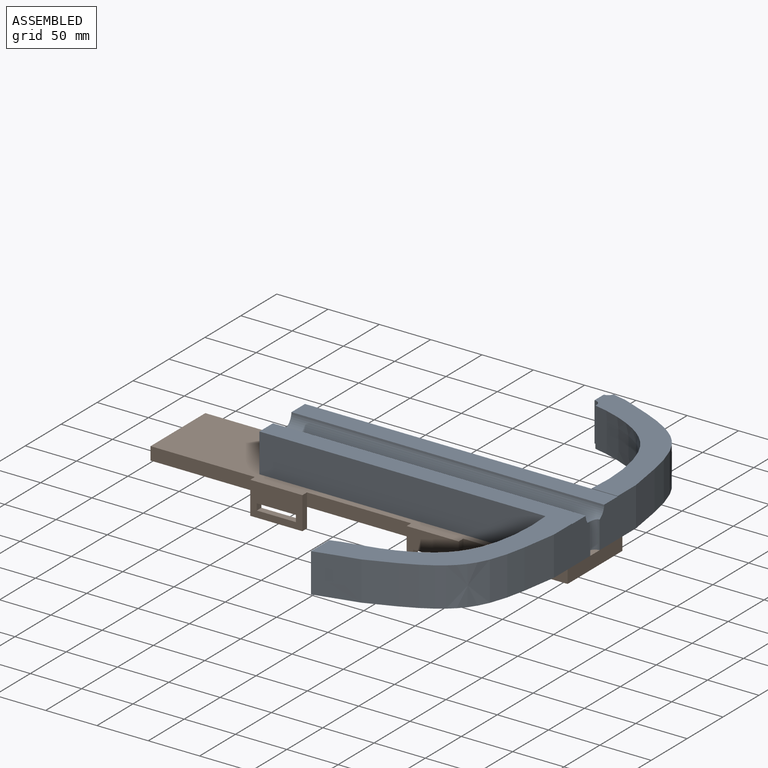
[diagram: assembled view]
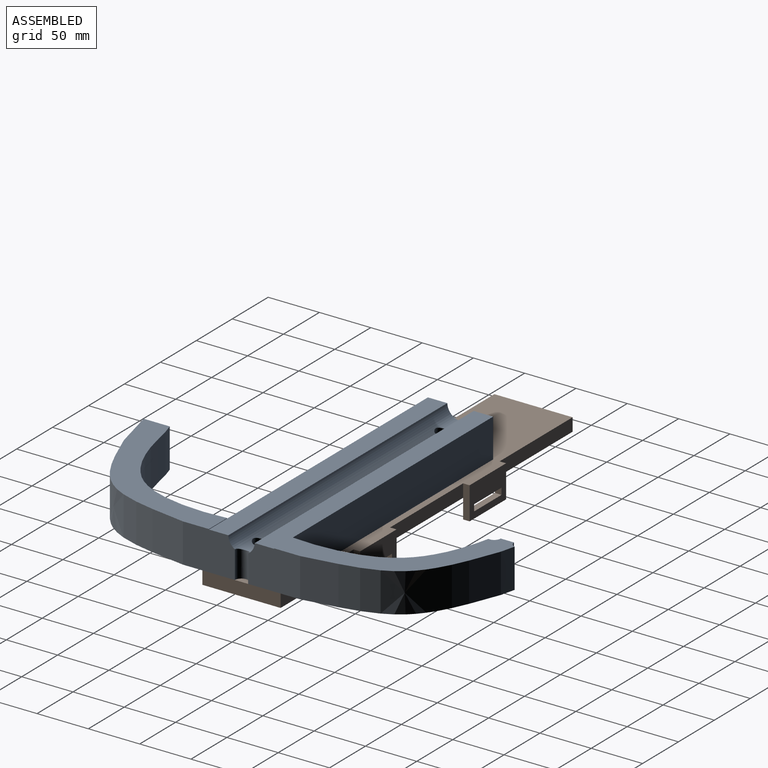
[diagram: assembled view, second angle]
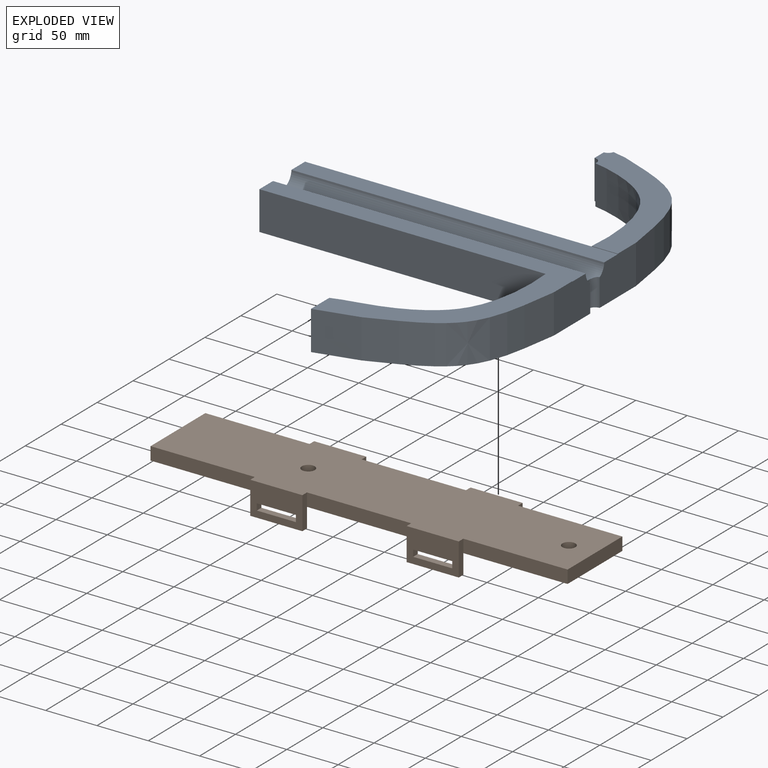
[diagram: exploded view]
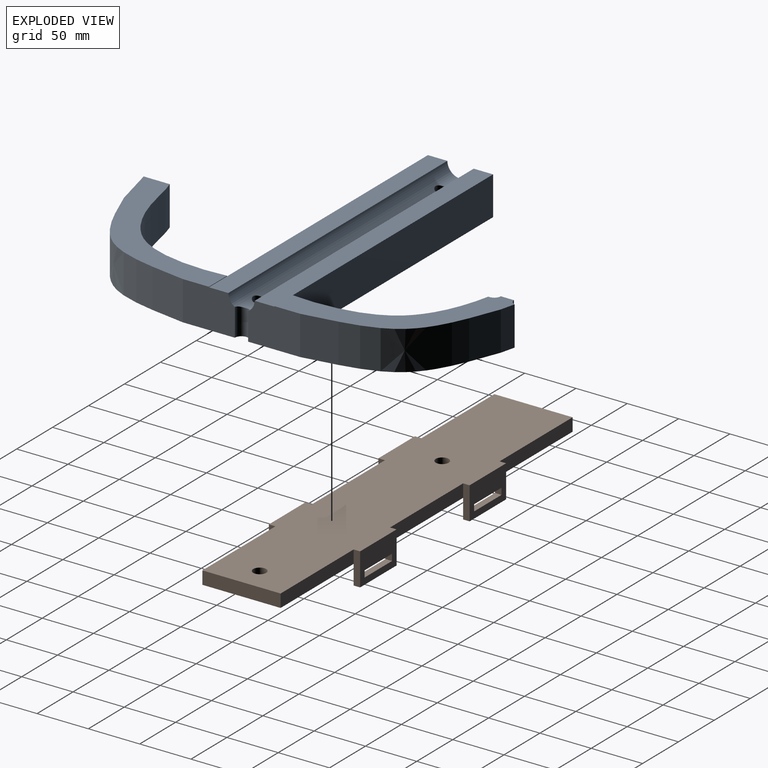
[diagram: exploded view, second angle]
ASSEMBLY  parts=2 mates=3
PART A: 26 faces, bbox 304.8x381.2x38.1 mm
  f0: cylinder r=12.86mm len=304.8mm, axis (-1,0,0), area 11721.3mm2, adj f2,f3,f6,f7,f8,f9,f10,f11
  f1: plane 381.16x304.8mm, normal (0,0,-1), area 29235.4mm2, adj f2,f4,f5,f7,f8,f9,f10,f11
  f2: plane 50.65x38.1mm, normal (1,0,0), area 1871.6mm2, adj f0,f1,f6,f9,f18,f24,f25
  f3: plane 304.8x18.9mm, normal (0,0,1), area 5759.4mm2, adj f0,f4,f7,f8,f12
  f4: plane 279.4x37.67mm, normal (0,-1,0), area 10524.2mm2, adj f1,f3,f8,f13
  f5: plane 279.4x37.67mm, normal (0,1,0), area 10524.2mm2, adj f1,f6,f8,f19
  f6: plane 304.8x18.9mm, normal (0,0,1), area 5759.4mm2, adj f0,f2,f5,f8,f18
  f7: plane 50.65x38.1mm, normal (1,0,0), area 1871.6mm2, adj f0,f1,f3,f9,f12,f14,f17
  f8: plane 63.5x37.67mm, normal (-1,0,0), area 2143.2mm2, adj f0,f1,f3,f4,f5,f6
  f9: cylinder r=6.5mm len=27mm, axis (0,0,-1), area 533.1mm2, adj f0,f1,f2,f7
  f10: cylinder r=6.35mm len=26.92mm, axis (0,0,-1), area 1039.8mm2, adj f0,f1
  f11: cylinder r=6.35mm len=26.92mm, axis (0,0,-1), area 1039.8mm2, adj f0,f1
  f12: plane 25.4x0.43mm, normal (0,1,0), area 11mm2, adj f3,f7,f13,f17
  f13: extruded ~136.83x116.59mm, area 7849.3mm2, adj f1,f4,f12,f16,f17
  f14: extruded ~126.54x98.69mm, area 6682.9mm2, adj f1,f7,f15,f17
  f15: extruded ~42.2x38.1mm, area 1654.8mm2, adj f1,f14,f16,f17
  f16: plane 38.1x25.4mm, normal (-1,0,0), area 967.7mm2, adj f1,f13,f15,f17
  f17: plane 162.23x140.88mm, normal (0,0,1), area 5414.8mm2, adj f7,f12,f13,f14,f15,f16
  f18: plane 25.4x0.43mm, normal (0,-1,0), area 11mm2, adj f2,f6,f19,f25
  f19: extruded ~129.88x88.48mm, area 6746mm2, adj f1,f5,f18,f20,f25
  f20: cylinder r=6.35mm len=38.1mm, axis (0,0,-1), area 434.2mm2, adj f1,f19,f21,f25
  f21: plane 38.1x12.89mm, normal (-1,0,0), area 491mm2, adj f1,f20,f22,f25
  f22: cylinder r=6.31mm len=38.1mm, axis (0,0,-1), area 321.7mm2, adj f1,f21,f23,f25
  f23: extruded ~38.1x14.2mm, area 557.1mm2, adj f1,f22,f24,f25
  f24: extruded ~126.54x98.69mm, area 6682.9mm2, adj f1,f2,f23,f25
  f25: plane 155.44x118.98mm, normal (0,0,1), area 4786.9mm2, adj f2,f18,f19,f20,f21,f22,f23,f24
PART B: 48 faces, bbox 406.4x88.9x31.8 mm
  f0: plane 50.8x19.05mm, normal (0,1,0), area 725.8mm2, adj f12,f13,f14,f15,f41,f42,f43,f44
  f1: plane 50.8x31.75mm, normal (0,-1,0), area 1371mm2, adj f13,f14,f15,f41,f42,f43,f44,f45
  f2: plane 50.8x31.75mm, normal (0,1,0), area 1371mm2, adj f21,f22,f23,f33,f34,f35,f36,f45
  f3: plane 50.8x19.05mm, normal (0,-1,0), area 725.8mm2, adj f12,f21,f22,f23,f33,f34,f35,f36
  f4: plane 101.6x12.7mm, normal (0,1,0), area 1290.3mm2, adj f8,f12,f24,f45
  f5: plane 101.6x12.7mm, normal (0,1,0), area 1290.3mm2, adj f12,f21,f25,f45
  f6: plane 101.6x12.7mm, normal (0,-1,0), area 1290.3mm2, adj f8,f12,f18,f45
  f7: plane 101.6x12.7mm, normal (0,-1,0), area 1290.3mm2, adj f12,f14,f17,f45
  f8: plane 76.2x12.7mm, normal (-1,0,0), area 967.7mm2, adj f4,f6,f12,f45
  f9: plane 101.6x12.7mm, normal (0,-1,0), area 1290.3mm2, adj f10,f12,f13,f45
  f10: plane 76.2x12.7mm, normal (1,0,0), area 967.7mm2, adj f9,f11,f12,f45
  f11: plane 101.6x12.7mm, normal (0,1,0), area 1290.3mm2, adj f10,f12,f22,f45
  f12: plane 406.4x76.2mm, normal (0,0,-1), area 30714.3mm2, adj f0,f3,f4,f5,f6,f7,f8,f9
  f13: plane 31.75x6.35mm, normal (1,0,0), area 201.6mm2, adj f0,f1,f9,f15,f45
  f14: plane 31.75x6.35mm, normal (-1,0,0), area 201.6mm2, adj f0,f1,f7,f15,f45
  f15: plane 50.8x6.35mm, normal (0,0,-1), area 322.6mm2, adj f0,f1,f13,f14
  f16: plane 50.8x19.05mm, normal (0,1,0), area 725.8mm2, adj f12,f17,f18,f19,f37,f38,f39,f40
  f17: plane 31.75x6.35mm, normal (1,0,0), area 201.6mm2, adj f7,f16,f19,f20,f45
  f18: plane 31.75x6.35mm, normal (-1,0,0), area 201.6mm2, adj f6,f16,f19,f20,f45
  f19: plane 50.8x6.35mm, normal (0,0,-1), area 322.6mm2, adj f16,f17,f18,f20
  f20: plane 50.8x31.75mm, normal (0,-1,0), area 1371mm2, adj f17,f18,f19,f37,f38,f39,f40,f45
  f21: plane 31.75x6.35mm, normal (-1,0,0), area 201.6mm2, adj f2,f3,f5,f23,f45
  f22: plane 31.75x6.35mm, normal (1,0,0), area 201.6mm2, adj f2,f3,f11,f23,f45
  f23: plane 50.8x6.35mm, normal (0,0,-1), area 322.6mm2, adj f2,f3,f21,f22
  f24: plane 31.75x6.35mm, normal (-1,0,0), area 201.6mm2, adj f4,f26,f27,f28,f45
  f25: plane 31.75x6.35mm, normal (1,0,0), area 201.6mm2, adj f5,f26,f27,f28,f45
  f26: plane 50.8x6.35mm, normal (0,0,-1), area 322.6mm2, adj f24,f25,f27,f28
  f27: plane 50.8x31.75mm, normal (0,1,0), area 1371mm2, adj f24,f25,f26,f29,f30,f31,f32,f45
  f28: plane 50.8x19.05mm, normal (0,-1,0), area 725.8mm2, adj f12,f24,f25,f26,f29,f30,f31,f32
  f29: plane 38.1x6.35mm, normal (0,0,-1), area 241.9mm2, adj f27,f28,f30,f32
  f30: plane 6.35x6.35mm, normal (1,0,0), area 40.3mm2, adj f27,f28,f29,f31
  f31: plane 38.1x6.35mm, normal (0,0,1), area 241.9mm2, adj f27,f28,f30,f32
  f32: plane 6.35x6.35mm, normal (-1,0,0), area 40.3mm2, adj f27,f28,f29,f31
  f33: plane 6.35x6.35mm, normal (1,0,0), area 40.3mm2, adj f2,f3,f34,f36
  f34: plane 38.1x6.35mm, normal (0,0,1), area 241.9mm2, adj f2,f3,f33,f35
  f35: plane 6.35x6.35mm, normal (-1,0,0), area 40.3mm2, adj f2,f3,f34,f36
  f36: plane 38.1x6.35mm, normal (0,0,-1), area 241.9mm2, adj f2,f3,f33,f35
  f37: plane 6.35x6.35mm, normal (-1,0,0), area 40.3mm2, adj f16,f20,f38,f40
  f38: plane 38.1x6.35mm, normal (0,0,1), area 241.9mm2, adj f16,f20,f37,f39
  f39: plane 6.35x6.35mm, normal (1,0,0), area 40.3mm2, adj f16,f20,f38,f40
  f40: plane 38.1x6.35mm, normal (0,0,-1), area 241.9mm2, adj f16,f20,f37,f39
  f41: plane 38.1x6.35mm, normal (0,0,-1), area 241.9mm2, adj f0,f1,f42,f44
  f42: plane 6.35x6.35mm, normal (-1,0,0), area 40.3mm2, adj f0,f1,f41,f43
  f43: plane 38.1x6.35mm, normal (0,0,1), area 241.9mm2, adj f0,f1,f42,f44
  f44: plane 6.35x6.35mm, normal (1,0,0), area 40.3mm2, adj f0,f1,f41,f43
  f45: plane 406.4x88.9mm, normal (0,0,1), area 32004.6mm2, adj f1,f2,f4,f5,f6,f7,f8,f9
  f46: cylinder r=6.35mm len=12.7mm, axis (0,0,1), area 506.7mm2, adj f12,f45
  f47: cylinder r=6.35mm len=12.7mm, axis (0,0,1), area 506.7mm2, adj f12,f45
PLACE A t=(-82.13,25.08,-1.45)mm
PLACE B t=(19.47,25.08,-14.15)mm
MATE planar B.f47 <-> A.f1  axis (0,0,1) through (-56.73,25.08,-1.45)mm
MATE cylindrical A.f10 <-> B.f47  axis (0,0,-1) through (-56.73,25.08,-1.45)mm
MATE cylindrical A.f11 <-> B.f46  axis (0,0,-1) through (197.27,25.08,-1.45)mm
